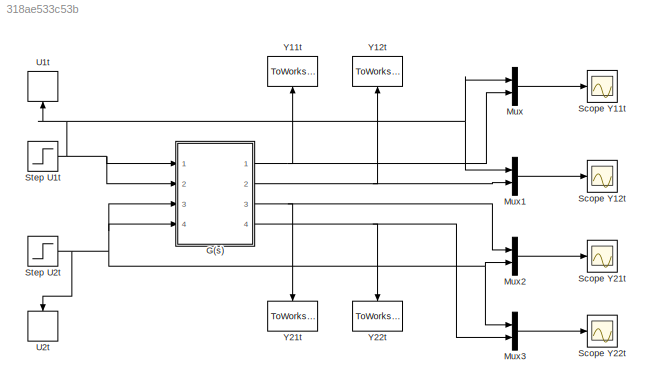
MODEL slx_318ae533c53b
KIND model
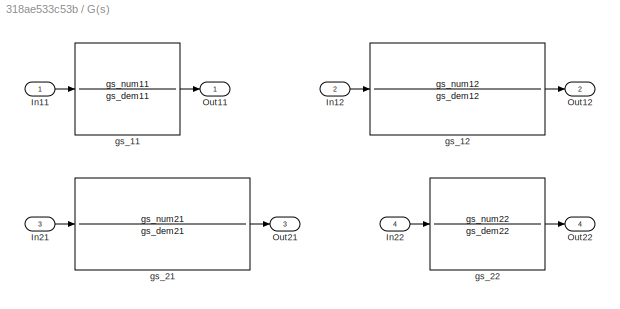
BLOCK [SubSystem] G(s)
  Ports = [4, 4]
  RequestExecContextInheritance = off
BLOCK [Inport] G(s)/In11
  IconDisplay = Port number
BLOCK [Inport] G(s)/In12
  IconDisplay = Port number
  Port = 2
BLOCK [Inport] G(s)/In21
  IconDisplay = Port number
  Port = 3
BLOCK [Inport] G(s)/In22
  IconDisplay = Port number
  Port = 4
BLOCK [Outport] G(s)/Out11
  IconDisplay = Port number
BLOCK [Outport] G(s)/Out12
  IconDisplay = Port number
  Port = 2
BLOCK [Outport] G(s)/Out21
  IconDisplay = Port number
  Port = 3
BLOCK [Outport] G(s)/Out22
  IconDisplay = Port number
  Port = 4
BLOCK [TransferFcn] G(s)/gs_11
  Denominator = gs_dem11
  Numerator = gs_num11
BLOCK [TransferFcn] G(s)/gs_12
  Denominator = gs_dem12
  Numerator = gs_num12
BLOCK [TransferFcn] G(s)/gs_21 
  Denominator = gs_dem21
  Numerator = gs_num21
BLOCK [TransferFcn] G(s)/gs_22
  Denominator = gs_dem22
  Numerator = gs_num22
BLOCK [Mux] Mux
  DisplayOption = bar
  Inputs = 2
  Ports = [2, 1]
BLOCK [Mux] Mux1
  DisplayOption = bar
  Inputs = 2
  Ports = [2, 1]
BLOCK [Mux] Mux2
  DisplayOption = bar
  Inputs = 2
  Ports = [2, 1]
BLOCK [Mux] Mux3
  DisplayOption = bar
  Inputs = 2
  Ports = [2, 1]
BLOCK [Scope] Scope Y11t
  Floating = off
  NumInputPorts = 1
  Ports = [1]
  ShowLegends = on
  TimeRange = 0.02452107279693294
  YMax = 2.8
  YMin = 1
BLOCK [Scope] Scope Y12t
  Floating = off
  NumInputPorts = 1
  Ports = [1]
  SaveName = ScopeData1
  ShowLegends = on
  TimeRange = 0.02452107279693294
  YMax = 0.01264600000000007
  YMin = 0.01232600000000006
BLOCK [Scope] Scope Y21t
  Floating = off
  LegendLocations = 0.89961     0.88659     0.07233     0.04959
  NumInputPorts = 1
  Ports = [1]
  SaveName = ScopeData2
  ShowLegends = on
  TimeRange = 0.02452107279693294
  YMax = 0.01264600000000007
  YMin = 0.01232600000000006
BLOCK [Scope] Scope Y22t
  Floating = off
  NumInputPorts = 1
  Ports = [1]
  SaveName = ScopeData3
  ShowLegends = on
  TimeRange = 0.02452107279693294
  YMax = 0.01264600000000007
  YMin = 0.01232600000000006
BLOCK [Step] Step U1t
  After = ut1_final_value
  Before = ut1_initial_value
  SampleTime = ut1_sample_time
  Time = ut1_step_time
BLOCK [Step] Step U2t
  After = ut2_final_value
  Before = ut2_initial_value
  SampleTime = ut2_sample_time
  Time = ut2_step_time
BLOCK [ToWorkspace] U1t
  FixptAsFi = on
  MaxDataPoints = inf
  Ports = [1]
  SampleTime = -1
  Save2DSignal = 2-D array (concatenate along first dimension)
  VariableName = U1t
BLOCK [ToWorkspace] U2t
  FixptAsFi = on
  MaxDataPoints = inf
  Ports = [1]
  SampleTime = -1
  Save2DSignal = 2-D array (concatenate along first dimension)
  VariableName = U2t
BLOCK [ToWorkspace] Y11t
  FixptAsFi = on
  MaxDataPoints = inf
  Ports = [1]
  SampleTime = -1
  Save2DSignal = 2-D array (concatenate along first dimension)
  VariableName = Yt_gs11
BLOCK [ToWorkspace] Y12t
  FixptAsFi = on
  MaxDataPoints = inf
  Ports = [1]
  SampleTime = -1
  Save2DSignal = 2-D array (concatenate along first dimension)
  VariableName = Yt_gs12
BLOCK [ToWorkspace] Y21t
  FixptAsFi = on
  MaxDataPoints = inf
  Ports = [1]
  SampleTime = -1
  Save2DSignal = 2-D array (concatenate along first dimension)
  VariableName = Yt_gs21
BLOCK [ToWorkspace] Y22t
  FixptAsFi = on
  MaxDataPoints = inf
  Ports = [1]
  SampleTime = -1
  Save2DSignal = 2-D array (concatenate along first dimension)
  VariableName = Yt_gs22
LINE G(s)/In11:1 -> G(s)/gs_11:1
LINE G(s)/In12:1 -> G(s)/gs_12:1
LINE G(s)/In21:1 -> G(s)/gs_21 :1
LINE G(s)/In22:1 -> G(s)/gs_22:1
LINE G(s)/gs_11:1 -> G(s)/Out11:1
LINE G(s)/gs_12:1 -> G(s)/Out12:1
LINE G(s)/gs_21 :1 -> G(s)/Out21:1
LINE G(s)/gs_22:1 -> G(s)/Out22:1
NET G(s):1 -> Mux:2, Y11t:1
NET G(s):2 -> Mux1:2, Y12t:1
NET G(s):3 -> Mux2:1, Y21t:1
NET G(s):4 -> Mux3:2, Y22t:1
LINE Mux1:1 -> Scope Y12t:1
LINE Mux2:1 -> Scope Y21t:1
LINE Mux3:1 -> Scope Y22t:1
LINE Mux:1 -> Scope Y11t:1
NET Step U1t:1 -> G(s):1, G(s):2, Mux1:1, Mux:1, U1t:1
NET Step U2t:1 -> G(s):3, G(s):4, Mux2:2, Mux3:1, U2t:1
note: NET lines group one-source signal fan-out (src -> all destinations, sorted); 1:1 wires keep LINE
